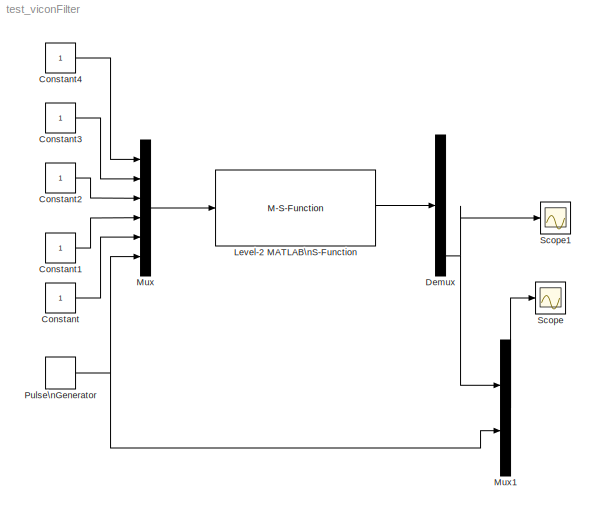
MODEL test_viconFilter
KIND model
BLOCK [Constant] Constant
  SID = 5
BLOCK [Constant] Constant1
  SID = 6
BLOCK [Constant] Constant2
  SID = 7
BLOCK [Constant] Constant3
  SID = 8
BLOCK [Constant] Constant4
  SID = 9
BLOCK [Demux] Demux
  DisplayOption = bar
  Outputs = 6
  Ports = [1, 6]
  SID = 12
BLOCK [M-S-Function] Level-2 MATLAB\nS-Function
  FunctionName = Vicon_Filter
  Ports = [1, 1]
  SID = 10
BLOCK [Mux] Mux
  DisplayOption = bar
  Inputs = 6
  Ports = [6, 1]
  SID = 11
BLOCK [Mux] Mux1
  DisplayOption = bar
  Inputs = 2
  Ports = [2, 1]
  SID = 14
BLOCK [DiscretePulseGenerator] Pulse\nGenerator
  Period = 10
  Ports = [0, 1]
  PulseType = Time based
  PulseWidth = 0.1
  SID = 4
BLOCK [Scope] Scope
  DataFormat = StructureWithTime
  Floating = off
  NumInputPorts = 1
  Ports = [1]
  SID = 13
  SampleTime = 0
BLOCK [Scope] Scope1
  DataFormat = StructureWithTime
  Floating = off
  NumInputPorts = 1
  Ports = [1]
  SID = 15
  SampleTime = 0
  SaveName = ScopeData1
LINE Constant1:1 -> Mux:4
LINE Constant2:1 -> Mux:3
LINE Constant3:1 -> Mux:2
LINE Constant4:1 -> Mux:1
LINE Constant:1 -> Mux:5
NET Demux:6 -> Mux1:1, Scope1:1
LINE Level-2 MATLAB\nS-Function:1 -> Demux:1
LINE Mux1:1 -> Scope:1
LINE Mux:1 -> Level-2 MATLAB\nS-Function:1
NET Pulse\nGenerator:1 -> Mux1:2, Mux:6
note: NET lines group one-source signal fan-out (src -> all destinations, sorted); 1:1 wires keep LINE
